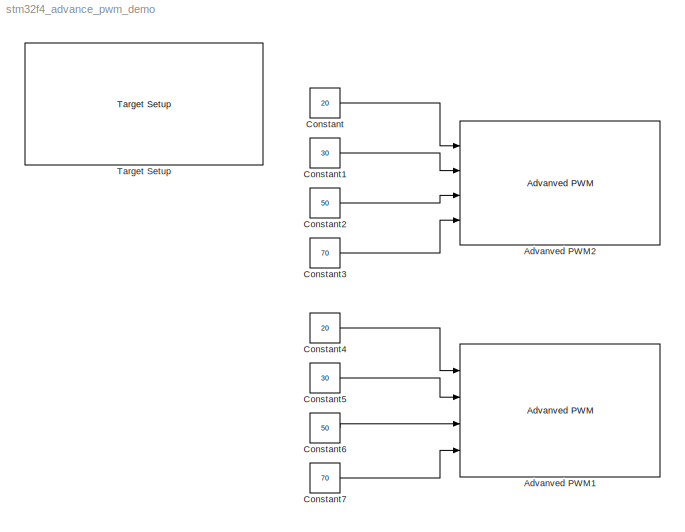
MODEL stm32f4_advance_pwm_demo
KIND model
CONFIG PreLoadFcn = waijung.modelPreload; % Required for working with Waijung Blockset. Do not remove.
BLOCK [Reference] Advanved PWM1  REF=stm32f4_pwm_lib/Advanved PWM
  Ports = [4]
  SourceBlock = stm32f4_pwm_lib/Advanved PWM
  SourceType = stm32f4_advanced_pwm
  automaticoutputenable = OFF
  blockid = AdvanvedPWM1
  breakinput = Disable
  countermode = TIM_CounterMode_Up
  deadtime = 1e-006
  locklevel = TIM_LOCKLevel_OFF
  op1 = Polarity HIGH and SET when idle
  op1n = Polarity HIGH and SET when idle
  op2 = Polarity HIGH and SET when idle
  op2n = Polarity HIGH and SET when idle
  op3 = Polarity HIGH and SET when idle
  op3n = Polarity HIGH and SET when idle
  op4 = Polarity HIGH and SET when idle
  opstate = Output and Output_N state Enable
  period = 1e-5
  pwm_deadtime = 148
  pwm_period = 1679
  pwm_presc = 0
  sampletime = -1
  setting = Basic
  timer = TIM8
  use_deadtime = on
BLOCK [Reference] Advanved PWM2  REF=stm32f4_pwm_lib/Advanved PWM
  Ports = [4]
  SourceBlock = stm32f4_pwm_lib/Advanved PWM
  SourceType = stm32f4_advanced_pwm
  automaticoutputenable = OFF
  blockid = AdvanvedPWM2
  breakinput = Disable
  countermode = TIM_CounterMode_Up
  deadtime = 1e-006
  locklevel = TIM_LOCKLevel_OFF
  op1 = Polarity HIGH and SET when idle
  op1n = Polarity HIGH and SET when idle
  op2 = Polarity HIGH and SET when idle
  op2n = Polarity HIGH and SET when idle
  op3 = Polarity HIGH and SET when idle
  op3n = Polarity HIGH and SET when idle
  op4 = Polarity HIGH and SET when idle
  opstate = Output and Output_N state Enable
  period = 1e-5
  pwm_deadtime = 148
  pwm_period = 1679
  pwm_presc = 0
  sampletime = -1
  setting = Basic
  timer = TIM1
  use_deadtime = on
BLOCK [Constant] Constant
  OutDataType = fixdt(1, 16)
  OutScaling = 2^0
  Value = 20
BLOCK [Constant] Constant1
  OutDataType = fixdt(1, 16)
  OutScaling = 2^0
  Value = 30
BLOCK [Constant] Constant2
  OutDataType = fixdt(1, 16)
  OutScaling = 2^0
  Value = 50
BLOCK [Constant] Constant3
  OutDataType = fixdt(1, 16)
  OutScaling = 2^0
  Value = 70
BLOCK [Constant] Constant4
  OutDataType = fixdt(1, 16)
  OutScaling = 2^0
  Value = 20
BLOCK [Constant] Constant5
  OutDataType = fixdt(1, 16)
  OutScaling = 2^0
  Value = 30
BLOCK [Constant] Constant6
  OutDataType = fixdt(1, 16)
  OutScaling = 2^0
  Value = 50
BLOCK [Constant] Constant7
  OutDataType = fixdt(1, 16)
  OutScaling = 2^0
  Value = 70
BLOCK [Reference] Target Setup  REF=stm32f4_device_config_lib/Target Setup
  Ports = []
  Priority = 100
  SourceBlock = stm32f4_device_config_lib/Target Setup
  SourceType = stm32f4_target_setup
  assemblercontrolstr = $(patsubst %, -I%, .) -mcpu=cortex-m4 -mthumb -mthumb-interwork -mfloat-abi=hard -mfpu=fpv4-sp-d16 -ffast-math -Wall -Wextra -Ofast -Wa,-amhls=$(<:.s=.lst) -D__STACK_SIZE=$(STACK_SIZE) -D__HEAP_SIZE=$(HEAP_SIZE)
  blockid = TargetSetup
  clockconfig = HSEOSC-8MHz
  compiler = GNU ARM
  compilercontrolstr = $(patsubst %, -I%, .) -mcpu=cortex-m4 -mthumb -mthumb-interwork -mfloat-abi=hard -mfpu=fpv4-sp-d16 -ffast-math -Wall -Wextra -Ofast
  editctrlstr = on
  enableautocompiledownload = on
  execprofile = None
  flashlength = 1024k
  flashorigin = 0x8000000
  fullchiperase = off
  hclk = 168000000
  heapsize = 0x200
  hseval = 8000000
  lastprofileruart = 3
  linkercontrolstr = -T$(LD_SCRIPT) -g -Wl,-Map=$(MAP),--cref,--no-warn-mismatch -mcpu=cortex-m4 -mthumb -mthumb-interwork -mfloat-abi=hard -mfpu=fpv4-sp-d16
  manualsetsampletime = off
  mcu = STM32F417IG (LQFP176)
  mcustr = STM32F417IG
  previous_compiler = GNU ARM
  profilerbaud = 115200
  profilerinitstr = 0.01,168000000,1680000,115200,0
  profilertxpin = D8
  profileruart = 3
  programmerinterface = ST-Link
  ramlength = 128k
  ramorigin = 0x20000000
  runafterdownload = on
  sampletime = 0.01
  showmemoryconfiguration = off
  stacksize = 0x400
  system_stm32f4xx_c_path = <path>
  systickreloadvalue = 1680000
  useextram = off
LINE Constant1:1 -> Advanved PWM2:2
LINE Constant2:1 -> Advanved PWM2:3
LINE Constant3:1 -> Advanved PWM2:4
LINE Constant4:1 -> Advanved PWM1:1
LINE Constant5:1 -> Advanved PWM1:2
LINE Constant6:1 -> Advanved PWM1:3
LINE Constant7:1 -> Advanved PWM1:4
LINE Constant:1 -> Advanved PWM2:1
note: 1 file-system path scrubbed to <path> (not preserved elsewhere — flat text is the only slx artifact)
